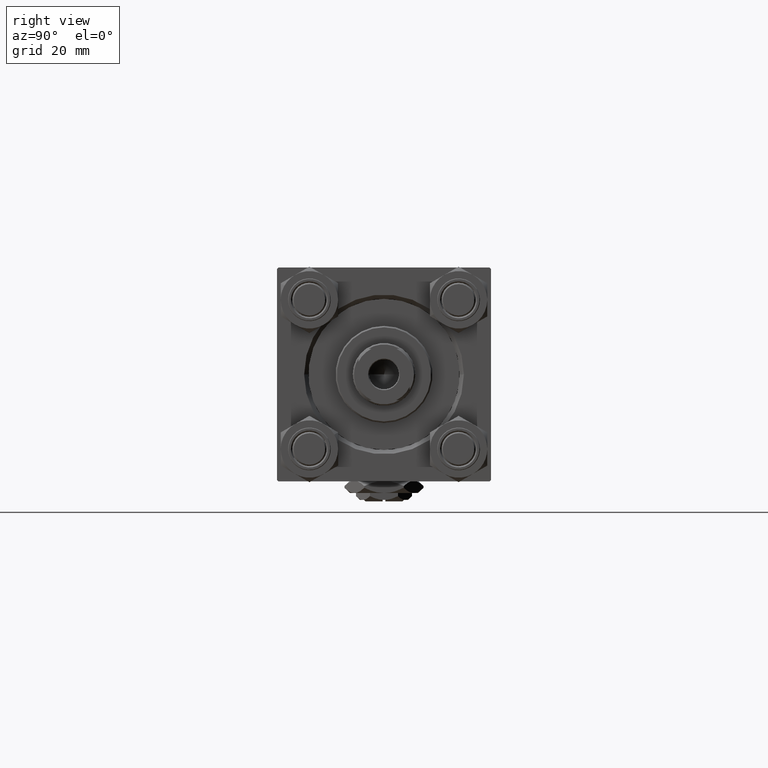
[diagram: clean part render]
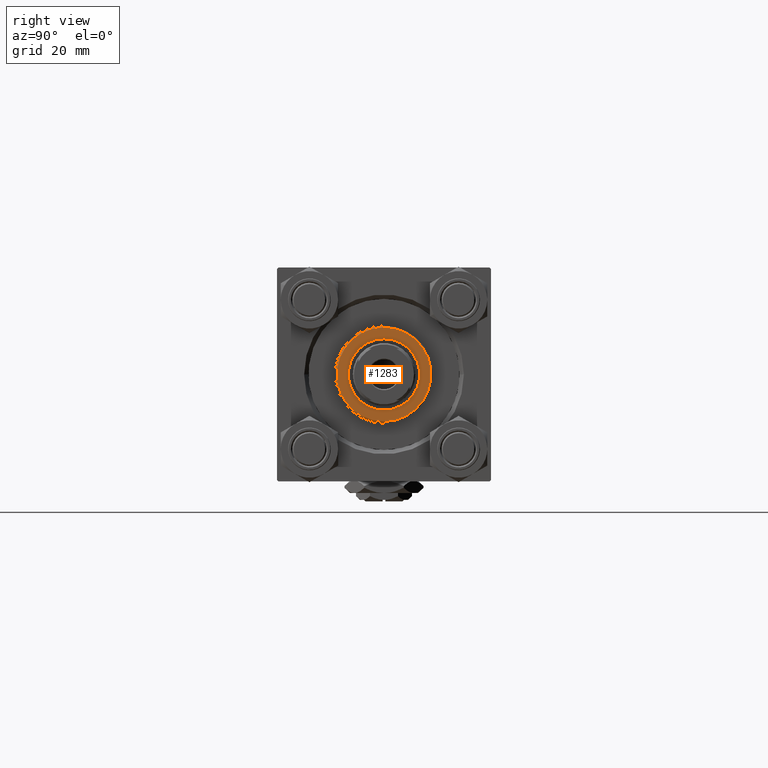
[diagram: same view with one face highlighted and labeled with its STEP entity id]
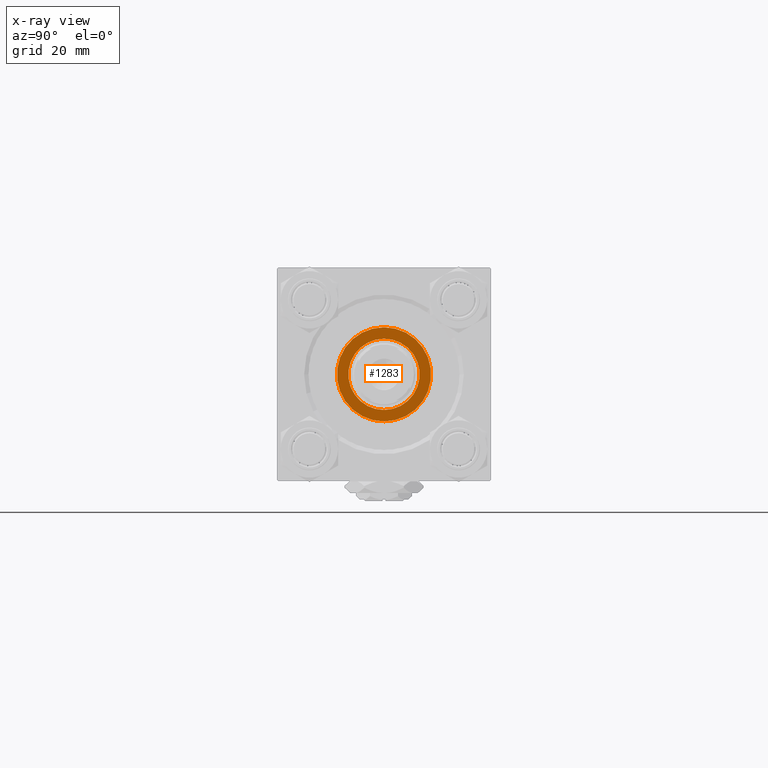
[diagram: x-ray of the same camera — body ghosted, the highlighted face saturated]
A machine part, right view. The second image highlights one B-rep face of the part: STEP entity #1283.
The next image is the same camera in x-ray: the body ghosted, the highlighted face saturated — about 0% of this face is hidden behind the body in this view.
In plain terms, the highlighted planar face has unit normal (1, -0, 0).
Its self-contained STEP definition (entity closure, byte-faithful):
#21 = PLANE ( 'NONE',  #32462 ) ;
#432 = VERTEX_POINT ( 'NONE', #47305 ) ;
#1283 = ADVANCED_FACE ( 'NONE', ( #48096, #12219 ), #21, .T. ) ;
#1440 = ORIENTED_EDGE ( 'NONE', *, *, #16813, .F. ) ;
#2370 = CARTESIAN_POINT ( 'NONE',  ( 16.50000000000000000, 2.051283388571816887E-15, 37.69999999999999574 ) ) ;
#3154 = DIRECTION ( 'NONE',  ( 1.000000000000000000, 0.000000000000000000, 0.000000000000000000 ) ) ;
#6569 = AXIS2_PLACEMENT_3D ( 'NONE', #34594, #14320, #3154 ) ;
#8713 = CARTESIAN_POINT ( 'NONE',  ( -12.50000000000000000, 1.530808498934191521E-15, 37.69999999999999574 ) ) ;
#11798 = VERTEX_POINT ( 'NONE', #8713 ) ;
#12219 = FACE_OUTER_BOUND ( 'NONE', #42280, .T. ) ;
#12309 = CARTESIAN_POINT ( 'NONE',  ( 0.000000000000000000, 0.000000000000000000, 37.69999999999999574 ) ) ;
#12682 = DIRECTION ( 'NONE',  ( 1.000000000000000000, 0.000000000000000000, 0.000000000000000000 ) ) ;
#13591 = EDGE_CURVE ( 'NONE', #432, #11798, #17788, .T. ) ;
#14293 = VERTEX_POINT ( 'NONE', #43758 ) ;
#14320 = DIRECTION ( 'NONE',  ( 0.000000000000000000, 0.000000000000000000, 1.000000000000000000 ) ) ;
#15946 = DIRECTION ( 'NONE',  ( 1.000000000000000000, 0.000000000000000000, 0.000000000000000000 ) ) ;
#16470 = DIRECTION ( 'NONE',  ( 0.000000000000000000, 0.000000000000000000, 1.000000000000000000 ) ) ;
#16813 = EDGE_CURVE ( 'NONE', #11798, #432, #41691, .T. ) ;
#17788 = CIRCLE ( 'NONE', #41860, 12.50000000000000000 ) ;
#18224 = ORIENTED_EDGE ( 'NONE', *, *, #49795, .T. ) ;
#23591 = VERTEX_POINT ( 'NONE', #2370 ) ;
#24567 = ORIENTED_EDGE ( 'NONE', *, *, #13591, .F. ) ;
#26031 = EDGE_LOOP ( 'NONE', ( #24567, #1440 ) ) ;
#26252 = CARTESIAN_POINT ( 'NONE',  ( 0.000000000000000000, 0.000000000000000000, 37.69999999999999574 ) ) ;
#28330 = DIRECTION ( 'NONE',  ( 1.000000000000000000, 0.000000000000000000, -0.000000000000000000 ) ) ;
#29457 = AXIS2_PLACEMENT_3D ( 'NONE', #26252, #42355, #46525 ) ;
#32462 = AXIS2_PLACEMENT_3D ( 'NONE', #44179, #43408, #28330 ) ;
#33228 = ORIENTED_EDGE ( 'NONE', *, *, #42049, .T. ) ;
#34594 = CARTESIAN_POINT ( 'NONE',  ( 0.000000000000000000, 0.000000000000000000, 37.69999999999999574 ) ) ;
#36336 = DIRECTION ( 'NONE',  ( 0.000000000000000000, 0.000000000000000000, 1.000000000000000000 ) ) ;
#41100 = CIRCLE ( 'NONE', #29457, 16.50000000000000000 ) ;
#41382 = CARTESIAN_POINT ( 'NONE',  ( 0.000000000000000000, 0.000000000000000000, 37.69999999999999574 ) ) ;
#41454 = CIRCLE ( 'NONE', #6569, 16.50000000000000000 ) ;
#41691 = CIRCLE ( 'NONE', #45860, 12.50000000000000000 ) ;
#41860 = AXIS2_PLACEMENT_3D ( 'NONE', #41382, #36336, #12682 ) ;
#42049 = EDGE_CURVE ( 'NONE', #23591, #14293, #41454, .T. ) ;
#42280 = EDGE_LOOP ( 'NONE', ( #18224, #33228 ) ) ;
#42355 = DIRECTION ( 'NONE',  ( 0.000000000000000000, 0.000000000000000000, 1.000000000000000000 ) ) ;
#43408 = DIRECTION ( 'NONE',  ( 0.000000000000000000, 0.000000000000000000, 1.000000000000000000 ) ) ;
#43758 = CARTESIAN_POINT ( 'NONE',  ( -16.50000000000000000, 0.000000000000000000, 37.69999999999999574 ) ) ;
#44179 = CARTESIAN_POINT ( 'NONE',  ( 0.000000000000000000, 0.000000000000000000, 37.69999999999999574 ) ) ;
#45860 = AXIS2_PLACEMENT_3D ( 'NONE', #12309, #16470, #15946 ) ;
#46525 = DIRECTION ( 'NONE',  ( 1.000000000000000000, 0.000000000000000000, 0.000000000000000000 ) ) ;
#47305 = CARTESIAN_POINT ( 'NONE',  ( 12.50000000000000000, 0.000000000000000000, 37.69999999999999574 ) ) ;
#48096 = FACE_BOUND ( 'NONE', #26031, .T. ) ;
#49795 = EDGE_CURVE ( 'NONE', #14293, #23591, #41100, .T. ) ;